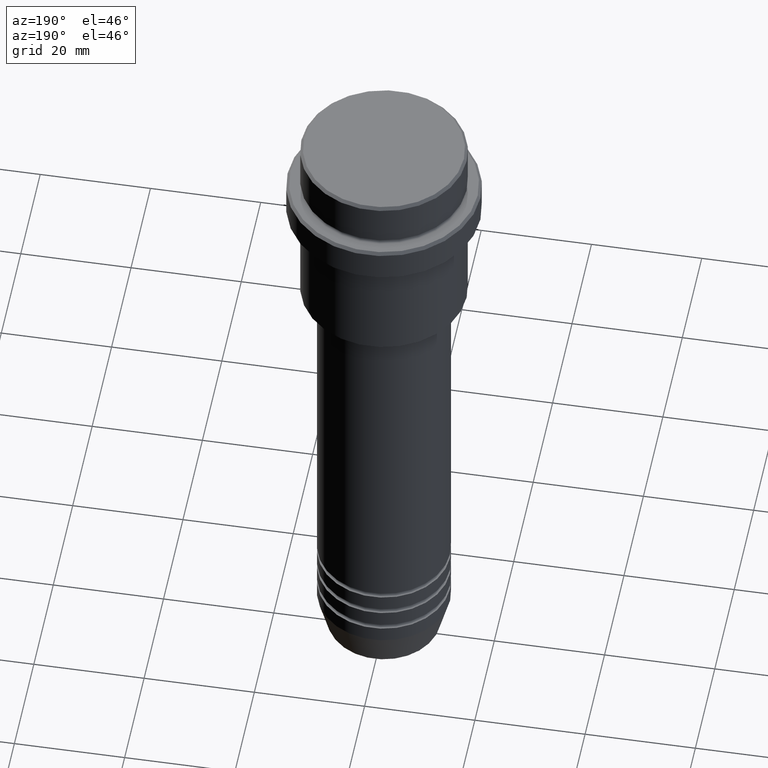
[diagram: clean part render]
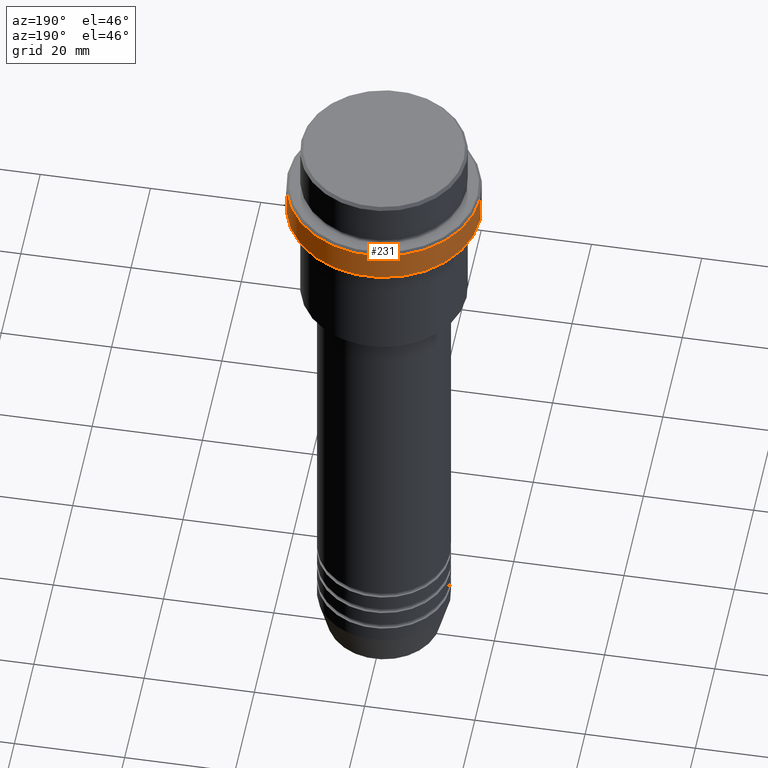
[diagram: same view with one face highlighted and labeled with its STEP entity id]
A machine part, auxiliary view. The second image highlights one B-rep face of the part: STEP entity #231.
In plain terms, the highlighted cylindrical surface (partial cylindrical patch) has radius 17.5 mm, axis along (-0, -0, 1).
Its self-contained STEP definition (entity closure, byte-faithful):
#66 = LINE ( 'NONE', #511, #155 ) ;
#77 = EDGE_CURVE ( 'NONE', #431, #698, #1094, .T. ) ;
#93 = ORIENTED_EDGE ( 'NONE', *, *, #77, .T. ) ;
#123 = VERTEX_POINT ( 'NONE', #1268 ) ;
#135 = AXIS2_PLACEMENT_3D ( 'NONE', #150, #154, #821 ) ;
#146 = CARTESIAN_POINT ( 'NONE',  ( 0.000000000000000000, 0.000000000000000000, 0.000000000000000000 ) ) ;
#150 = CARTESIAN_POINT ( 'NONE',  ( 0.000000000000000000, 0.000000000000000000, -15.00000000000000000 ) ) ;
#154 = DIRECTION ( 'NONE',  ( -0.000000000000000000, -0.000000000000000000, 1.000000000000000000 ) ) ;
#155 = VECTOR ( 'NONE', #180, 1000.000000000000000 ) ;
#176 = VECTOR ( 'NONE', #292, 1000.000000000000000 ) ;
#180 = DIRECTION ( 'NONE',  ( -0.000000000000000000, -0.000000000000000000, 1.000000000000000000 ) ) ;
#231 = ADVANCED_FACE ( 'NONE', ( #388 ), #612, .T. ) ;
#281 = CARTESIAN_POINT ( 'NONE',  ( 0.000000000000000000, 0.000000000000000000, -9.500000000000014211 ) ) ;
#292 = DIRECTION ( 'NONE',  ( -0.000000000000000000, -0.000000000000000000, 1.000000000000000000 ) ) ;
#388 = FACE_OUTER_BOUND ( 'NONE', #1106, .T. ) ;
#431 = VERTEX_POINT ( 'NONE', #1298 ) ;
#466 = ORIENTED_EDGE ( 'NONE', *, *, #904, .F. ) ;
#511 = CARTESIAN_POINT ( 'NONE',  ( 17.50000000000000000, 0.000000000000000000, 0.000000000000000000 ) ) ;
#539 = ORIENTED_EDGE ( 'NONE', *, *, #1103, .T. ) ;
#587 = CARTESIAN_POINT ( 'NONE',  ( 17.50000000000000000, 0.000000000000000000, -9.500000000000014211 ) ) ;
#588 = DIRECTION ( 'NONE',  ( 1.000000000000000000, 0.000000000000000000, 0.000000000000000000 ) ) ;
#612 = CYLINDRICAL_SURFACE ( 'NONE', #1073, 17.50000000000000000 ) ;
#698 = VERTEX_POINT ( 'NONE', #587 ) ;
#821 = DIRECTION ( 'NONE',  ( 1.000000000000000000, 0.000000000000000000, 0.000000000000000000 ) ) ;
#831 = DIRECTION ( 'NONE',  ( -0.000000000000000000, -0.000000000000000000, 1.000000000000000000 ) ) ;
#904 = EDGE_CURVE ( 'NONE', #123, #698, #66, .T. ) ;
#970 = VERTEX_POINT ( 'NONE', #1117 ) ;
#1073 = AXIS2_PLACEMENT_3D ( 'NONE', #146, #831, #588 ) ;
#1094 = CIRCLE ( 'NONE', #1386, 17.50000000000000000 ) ;
#1103 = EDGE_CURVE ( 'NONE', #123, #970, #1231, .T. ) ;
#1106 = EDGE_LOOP ( 'NONE', ( #539, #1317, #93, #466 ) ) ;
#1117 = CARTESIAN_POINT ( 'NONE',  ( -17.50000000000000000, 2.143131898507868248E-15, -15.00000000000000000 ) ) ;
#1150 = DIRECTION ( 'NONE',  ( 0.000000000000000000, 0.000000000000000000, -1.000000000000000000 ) ) ;
#1162 = DIRECTION ( 'NONE',  ( 1.000000000000000000, 0.000000000000000000, 0.000000000000000000 ) ) ;
#1171 = CARTESIAN_POINT ( 'NONE',  ( -17.50000000000000000, 2.143131898507868248E-15, 0.000000000000000000 ) ) ;
#1231 = CIRCLE ( 'NONE', #135, 17.50000000000000000 ) ;
#1259 = EDGE_CURVE ( 'NONE', #970, #431, #1370, .T. ) ;
#1268 = CARTESIAN_POINT ( 'NONE',  ( 17.50000000000000000, 0.000000000000000000, -15.00000000000000000 ) ) ;
#1298 = CARTESIAN_POINT ( 'NONE',  ( -17.50000000000000000, 2.143131898507868248E-15, -9.500000000000014211 ) ) ;
#1317 = ORIENTED_EDGE ( 'NONE', *, *, #1259, .T. ) ;
#1370 = LINE ( 'NONE', #1171, #176 ) ;
#1386 = AXIS2_PLACEMENT_3D ( 'NONE', #281, #1150, #1162 ) ;